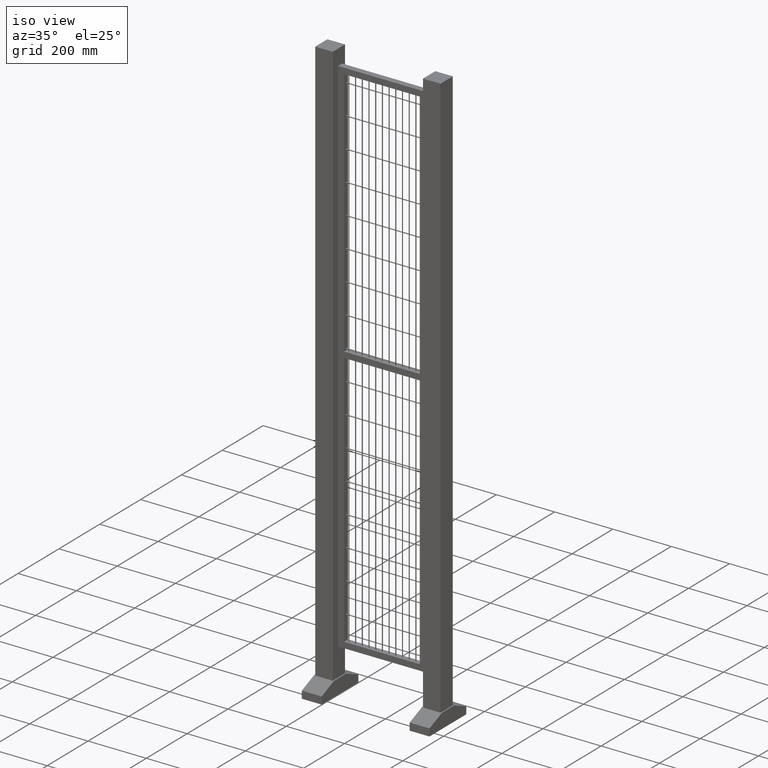
[diagram: clean part render]
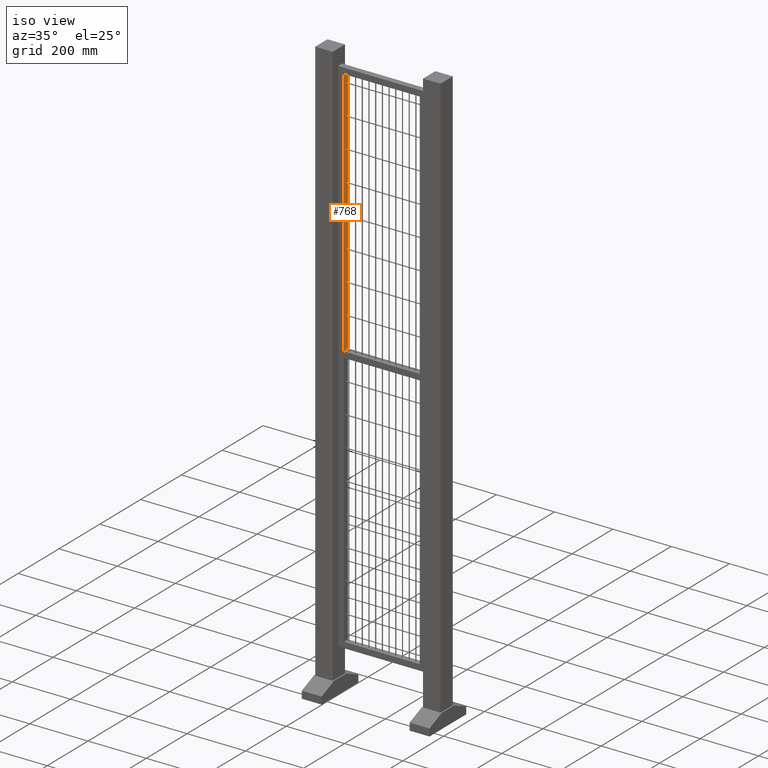
[diagram: same view with one face highlighted and labeled with its STEP entity id]
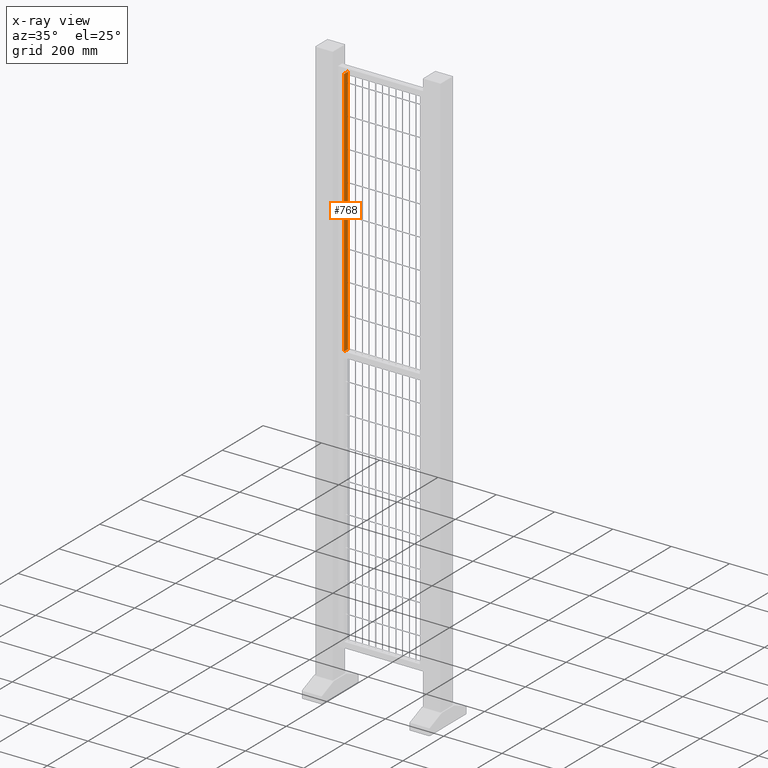
[diagram: x-ray of the same camera — body ghosted, the highlighted face saturated]
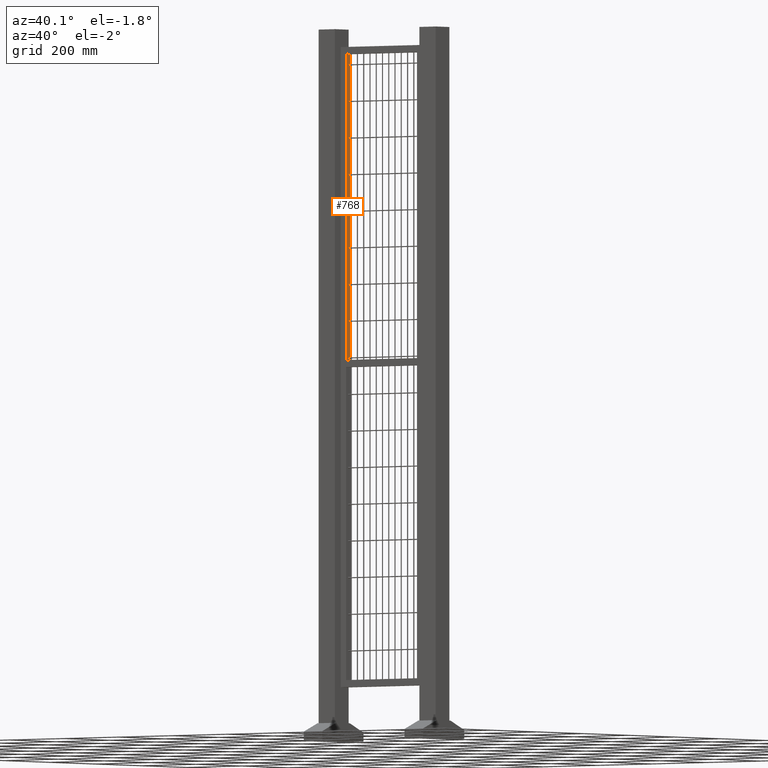
[diagram: same view with one face highlighted and labeled with its STEP entity id]
A machine part, iso view. The second image highlights one B-rep face of the part: STEP entity #768.
The next image is the same camera in x-ray: the body ghosted, the highlighted face saturated — about 0% of this face is hidden behind the body in this view.
A second angle (auxiliary view) of the same face is appended — the face is thin or edge-on in the first view.
In plain terms, the highlighted planar face has unit normal (1, 0, -0).
Its self-contained STEP definition (entity closure, byte-faithful):
#62=LINE('',#2646,#156);
#63=LINE('',#2649,#157);
#64=LINE('',#2651,#158);
#65=LINE('',#2653,#159);
#156=VECTOR('',#2220,1.);
#157=VECTOR('',#2221,1.);
#158=VECTOR('',#2222,1.);
#159=VECTOR('',#2223,1.);
#565=PLANE('',#1906);
#657=FACE_OUTER_BOUND('',#1031,.T.);
#768=ADVANCED_FACE('',(#657),#565,.T.);
#1031=EDGE_LOOP('',(#1204,#1205,#1206,#1207));
#1204=ORIENTED_EDGE('',*,*,#1612,.T.);
#1205=ORIENTED_EDGE('',*,*,#1613,.T.);
#1206=ORIENTED_EDGE('',*,*,#1614,.F.);
#1207=ORIENTED_EDGE('',*,*,#1615,.F.);
#1484=VERTEX_POINT('',#2647);
#1485=VERTEX_POINT('',#2648);
#1486=VERTEX_POINT('',#2650);
#1487=VERTEX_POINT('',#2652);
#1612=EDGE_CURVE('',#1484,#1485,#62,.T.);
#1613=EDGE_CURVE('',#1485,#1486,#63,.T.);
#1614=EDGE_CURVE('',#1487,#1486,#64,.T.);
#1615=EDGE_CURVE('',#1484,#1487,#65,.T.);
#1906=AXIS2_PLACEMENT_3D('',#2654,#2224,#2225);
#2220=DIRECTION('',(-6.30808536718839E-17,0.,-1.));
#2221=DIRECTION('',(0.,1.,0.));
#2222=DIRECTION('',(-6.30808536718839E-17,0.,-1.));
#2223=DIRECTION('',(0.,1.,0.));
#2224=DIRECTION('',(1.,0.,-6.30808536718839E-17));
#2225=DIRECTION('',(-5.55111512312578E-17,0.,-1.));
#2646=CARTESIAN_POINT('',(-130.,-10.,880.));
#2647=CARTESIAN_POINT('',(-130.,-10.,880.));
#2648=CARTESIAN_POINT('',(-130.,-10.,20.));
#2649=CARTESIAN_POINT('',(-130.,-10.,20.));
#2650=CARTESIAN_POINT('',(-130.,10.,20.));
#2651=CARTESIAN_POINT('',(-130.,10.,880.));
#2652=CARTESIAN_POINT('',(-130.,10.,880.));
#2653=CARTESIAN_POINT('',(-130.,-10.,880.));
#2654=CARTESIAN_POINT('',(-130.,-10.,880.));